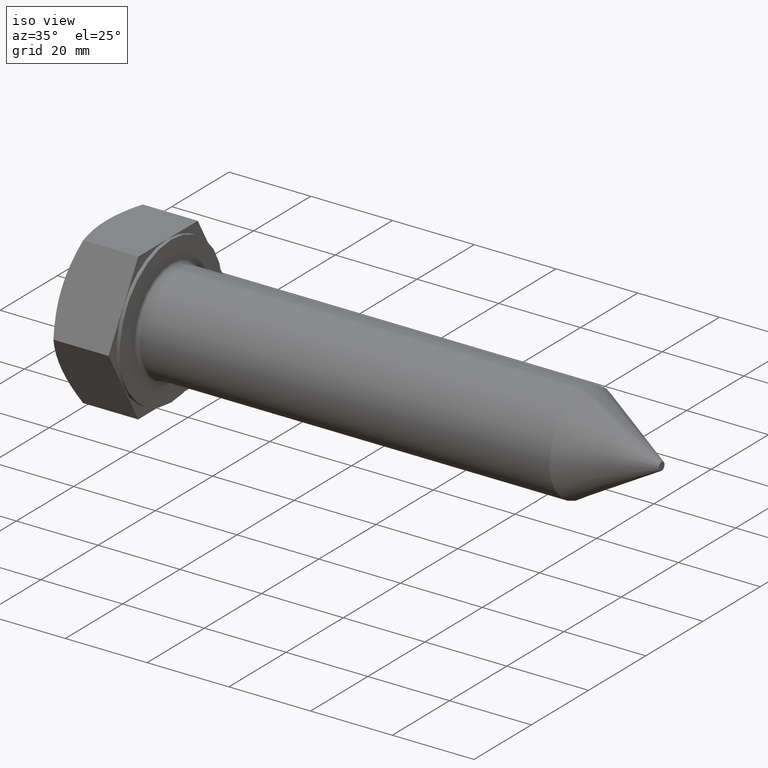
[diagram: clean part render]
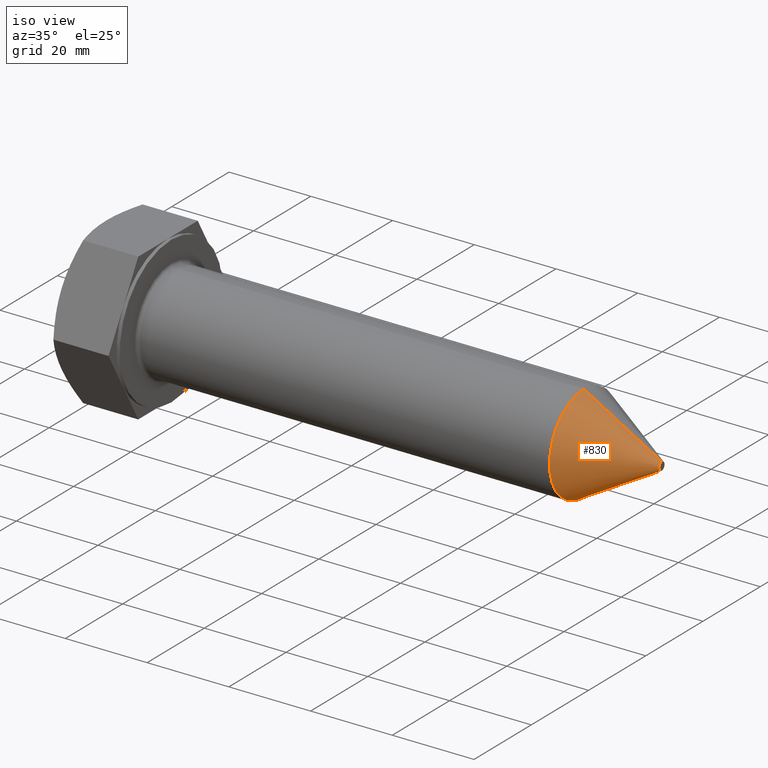
[diagram: same view with one face highlighted and labeled with its STEP entity id]
A machine part, iso view. The second image highlights one B-rep face of the part: STEP entity #830.
In plain terms, the highlighted conical surface has half-angle 30 deg.
Its self-contained STEP definition (entity closure, byte-faithful):
#16 = ORIENTED_EDGE ( 'NONE', *, *, #720, .F. ) ;
#17 = CIRCLE ( 'NONE', #597, 1.000000000000000000 ) ;
#19 = EDGE_CURVE ( 'NONE', #572, #489, #161, .T. ) ;
#40 = ORIENTED_EDGE ( 'NONE', *, *, #19, .F. ) ;
#85 = VECTOR ( 'NONE', #696, 999.9999999999998863 ) ;
#161 = CIRCLE ( 'NONE', #689, 12.00000000000000000 ) ;
#169 = ORIENTED_EDGE ( 'NONE', *, *, #688, .T. ) ;
#186 = DIRECTION ( 'NONE',  ( 0.000000000000000000, 0.000000000000000000, 1.000000000000000000 ) ) ;
#190 = CARTESIAN_POINT ( 'NONE',  ( 135.9000000000000057, 0.000000000000000000, 1.000000000000000000 ) ) ;
#215 = LINE ( 'NONE', #422, #226 ) ;
#226 = VECTOR ( 'NONE', #487, 999.9999999999998863 ) ;
#297 = DIRECTION ( 'NONE',  ( -1.000000000000000000, -0.000000000000000000, -0.000000000000000000 ) ) ;
#304 = CARTESIAN_POINT ( 'NONE',  ( 135.9000000000000057, 7.960204194457797449E-16, -1.000000000000000000 ) ) ;
#323 = DIRECTION ( 'NONE',  ( -1.000000000000000000, -0.000000000000000000, -0.000000000000000000 ) ) ;
#337 = CARTESIAN_POINT ( 'NONE',  ( 116.8474411167420755, 1.469576158976823947E-15, -12.00000000000000000 ) ) ;
#363 = CARTESIAN_POINT ( 'NONE',  ( 116.8474411167420755, 0.000000000000000000, 12.00000000000000000 ) ) ;
#379 = EDGE_CURVE ( 'NONE', #632, #489, #683, .T. ) ;
#422 = CARTESIAN_POINT ( 'NONE',  ( 135.9000000000000057, 1.224646799147353207E-16, -1.000000000000000000 ) ) ;
#426 = CARTESIAN_POINT ( 'NONE',  ( 135.9000000000000057, 0.000000000000000000, 0.000000000000000000 ) ) ;
#427 = CARTESIAN_POINT ( 'NONE',  ( 135.9000000000000057, 0.000000000000000000, 1.000000000000000000 ) ) ;
#428 = ORIENTED_EDGE ( 'NONE', *, *, #379, .T. ) ;
#487 = DIRECTION ( 'NONE',  ( -0.8660254037844418162, 6.123233995736700708E-17, -0.4999999999999947264 ) ) ;
#489 = VERTEX_POINT ( 'NONE', #363 ) ;
#510 = FACE_OUTER_BOUND ( 'NONE', #574, .T. ) ;
#572 = VERTEX_POINT ( 'NONE', #337 ) ;
#574 = EDGE_LOOP ( 'NONE', ( #16, #169, #428, #40 ) ) ;
#597 = AXIS2_PLACEMENT_3D ( 'NONE', #426, #694, #826 ) ;
#609 = CONICAL_SURFACE ( 'NONE', #675, 1.000000000000000000, 0.5235987755982927094 ) ;
#632 = VERTEX_POINT ( 'NONE', #190 ) ;
#675 = AXIS2_PLACEMENT_3D ( 'NONE', #800, #323, #186 ) ;
#683 = LINE ( 'NONE', #427, #85 ) ;
#688 = EDGE_CURVE ( 'NONE', #853, #632, #17, .T. ) ;
#689 = AXIS2_PLACEMENT_3D ( 'NONE', #852, #297, #846 ) ;
#694 = DIRECTION ( 'NONE',  ( -1.000000000000000000, -0.000000000000000000, -0.000000000000000000 ) ) ;
#696 = DIRECTION ( 'NONE',  ( -0.8660254037844418162, 0.000000000000000000, 0.4999999999999947264 ) ) ;
#720 = EDGE_CURVE ( 'NONE', #853, #572, #215, .T. ) ;
#800 = CARTESIAN_POINT ( 'NONE',  ( 135.9000000000000057, 0.000000000000000000, 0.000000000000000000 ) ) ;
#826 = DIRECTION ( 'NONE',  ( 0.000000000000000000, 0.000000000000000000, 1.000000000000000000 ) ) ;
#830 = ADVANCED_FACE ( 'NONE', ( #510 ), #609, .T. ) ;
#846 = DIRECTION ( 'NONE',  ( 0.000000000000000000, 0.000000000000000000, 1.000000000000000000 ) ) ;
#852 = CARTESIAN_POINT ( 'NONE',  ( 116.8474411167420755, 0.000000000000000000, 0.000000000000000000 ) ) ;
#853 = VERTEX_POINT ( 'NONE', #304 ) ;